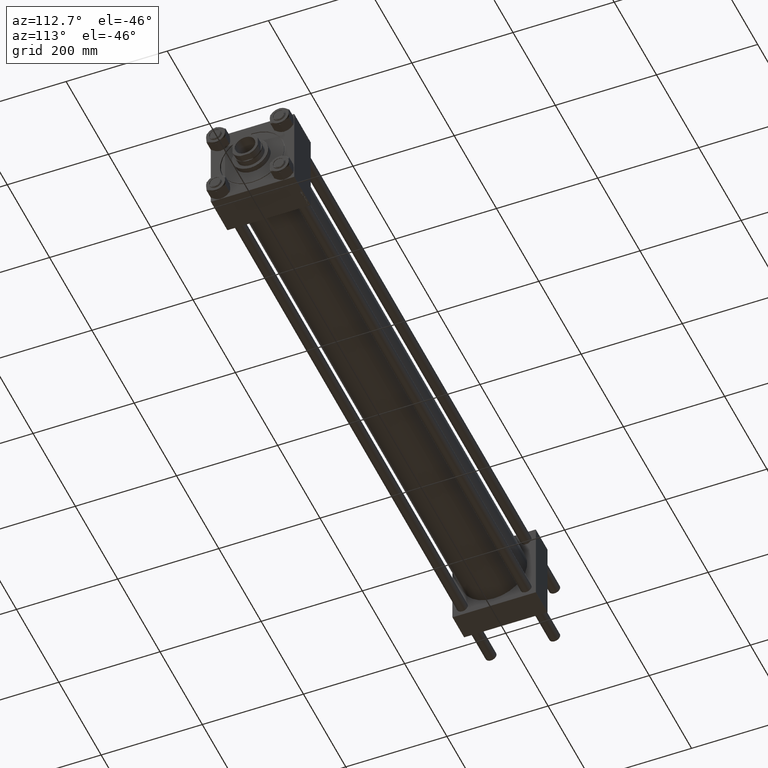
[diagram: clean part render]
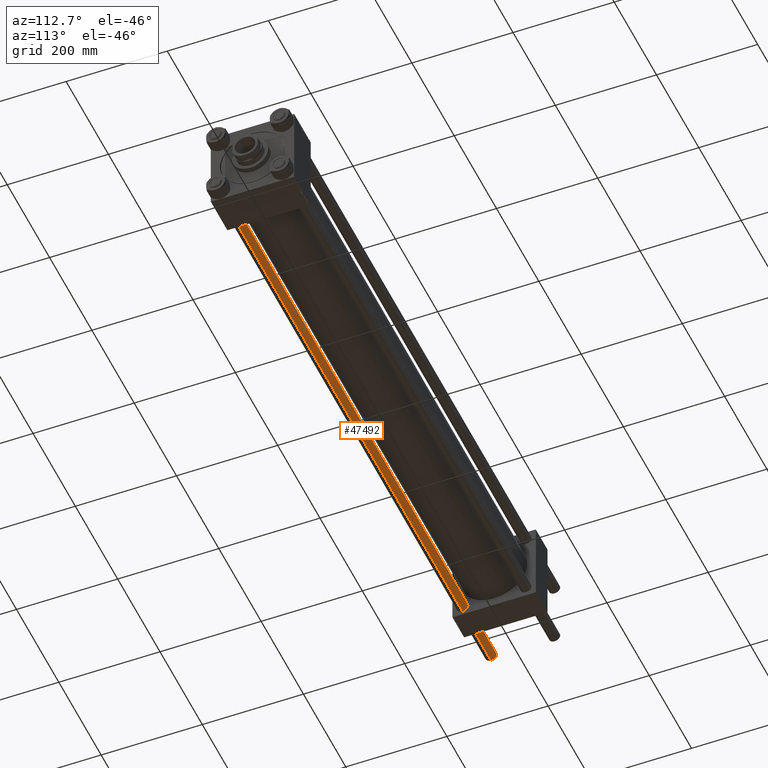
[diagram: same view with one face highlighted and labeled with its STEP entity id]
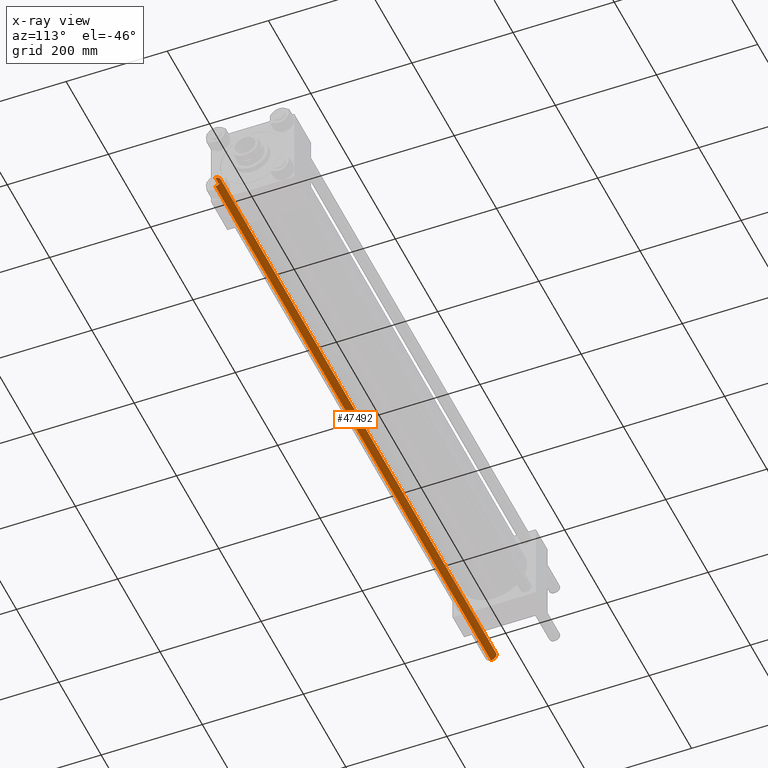
[diagram: x-ray of the same camera — body ghosted, the highlighted face saturated]
A machine part, auxiliary view. The second image highlights one B-rep face of the part: STEP entity #47492.
The next image is the same camera in x-ray: the body ghosted, the highlighted face saturated — about 0% of this face is hidden behind the body in this view.
In plain terms, the highlighted cylindrical surface (edge-blend (fillet) strip) has radius 11 mm, axis along (-1, 0, 0).
Its self-contained STEP definition (entity closure, byte-faithful):
#1487 = LINE ( 'NONE', #48775, #2103 ) ;
#2063 = AXIS2_PLACEMENT_3D ( 'NONE', #25027, #6686, #10001 ) ;
#2103 = VECTOR ( 'NONE', #47765, 1000.000000000000000 ) ;
#2301 = VERTEX_POINT ( 'NONE', #40428 ) ;
#2845 = CIRCLE ( 'NONE', #2063, 11.00000000000000000 ) ;
#3152 = ORIENTED_EDGE ( 'NONE', *, *, #27859, .T. ) ;
#3947 = EDGE_CURVE ( 'NONE', #8263, #2301, #2845, .T. ) ;
#4708 = EDGE_CURVE ( 'NONE', #4886, #8263, #1487, .T. ) ;
#4886 = VERTEX_POINT ( 'NONE', #47706 ) ;
#5286 = CARTESIAN_POINT ( 'NONE',  ( 11.00000000000000000, 1.347111479062088405E-15, 1304.000000000000000 ) ) ;
#6686 = DIRECTION ( 'NONE',  ( -0.000000000000000000, -0.000000000000000000, 1.000000000000000000 ) ) ;
#8263 = VERTEX_POINT ( 'NONE', #24288 ) ;
#9133 = EDGE_CURVE ( 'NONE', #45059, #2301, #33014, .T. ) ;
#10001 = DIRECTION ( 'NONE',  ( 1.000000000000000000, 0.000000000000000000, 0.000000000000000000 ) ) ;
#12585 = AXIS2_PLACEMENT_3D ( 'NONE', #22505, #29639, #41849 ) ;
#14171 = CIRCLE ( 'NONE', #12585, 11.00000000000000000 ) ;
#15106 = ORIENTED_EDGE ( 'NONE', *, *, #4708, .T. ) ;
#20341 = DIRECTION ( 'NONE',  ( -1.000000000000000000, 0.000000000000000000, 0.000000000000000000 ) ) ;
#22505 = CARTESIAN_POINT ( 'NONE',  ( 0.000000000000000000, 0.000000000000000000, 1303.500000000000227 ) ) ;
#24288 = CARTESIAN_POINT ( 'NONE',  ( -11.00000000000000000, 0.000000000000000000, 0.4999999999995008437 ) ) ;
#24924 = DIRECTION ( 'NONE',  ( -0.000000000000000000, -0.000000000000000000, -1.000000000000000000 ) ) ;
#25027 = CARTESIAN_POINT ( 'NONE',  ( 0.000000000000000000, 0.000000000000000000, 0.4999999999995008437 ) ) ;
#27859 = EDGE_CURVE ( 'NONE', #45059, #4886, #14171, .T. ) ;
#29639 = DIRECTION ( 'NONE',  ( 0.000000000000000000, 0.000000000000000000, -1.000000000000000000 ) ) ;
#32312 = CYLINDRICAL_SURFACE ( 'NONE', #43154, 11.00000000000000000 ) ;
#32561 = FACE_OUTER_BOUND ( 'NONE', #33101, .T. ) ;
#33014 = LINE ( 'NONE', #5286, #50124 ) ;
#33101 = EDGE_LOOP ( 'NONE', ( #49503, #3152, #15106, #39228 ) ) ;
#39228 = ORIENTED_EDGE ( 'NONE', *, *, #3947, .T. ) ;
#40199 = CARTESIAN_POINT ( 'NONE',  ( 0.000000000000000000, 0.000000000000000000, 1304.000000000000000 ) ) ;
#40428 = CARTESIAN_POINT ( 'NONE',  ( 11.00000000000000000, 1.347111479062088405E-15, 0.4999999999995008437 ) ) ;
#41187 = CARTESIAN_POINT ( 'NONE',  ( 11.00000000000000000, 1.347111479062088405E-15, 1303.500000000000227 ) ) ;
#41849 = DIRECTION ( 'NONE',  ( 1.000000000000000000, 0.000000000000000000, 0.000000000000000000 ) ) ;
#43154 = AXIS2_PLACEMENT_3D ( 'NONE', #40199, #24924, #20341 ) ;
#45059 = VERTEX_POINT ( 'NONE', #41187 ) ;
#45890 = DIRECTION ( 'NONE',  ( -0.000000000000000000, -0.000000000000000000, -1.000000000000000000 ) ) ;
#47492 = ADVANCED_FACE ( 'NONE', ( #32561 ), #32312, .T. ) ;
#47706 = CARTESIAN_POINT ( 'NONE',  ( -11.00000000000000000, 0.000000000000000000, 1303.500000000000227 ) ) ;
#47765 = DIRECTION ( 'NONE',  ( -0.000000000000000000, -0.000000000000000000, -1.000000000000000000 ) ) ;
#48775 = CARTESIAN_POINT ( 'NONE',  ( -11.00000000000000000, 0.000000000000000000, 1304.000000000000000 ) ) ;
#49503 = ORIENTED_EDGE ( 'NONE', *, *, #9133, .F. ) ;
#50124 = VECTOR ( 'NONE', #45890, 1000.000000000000000 ) ;